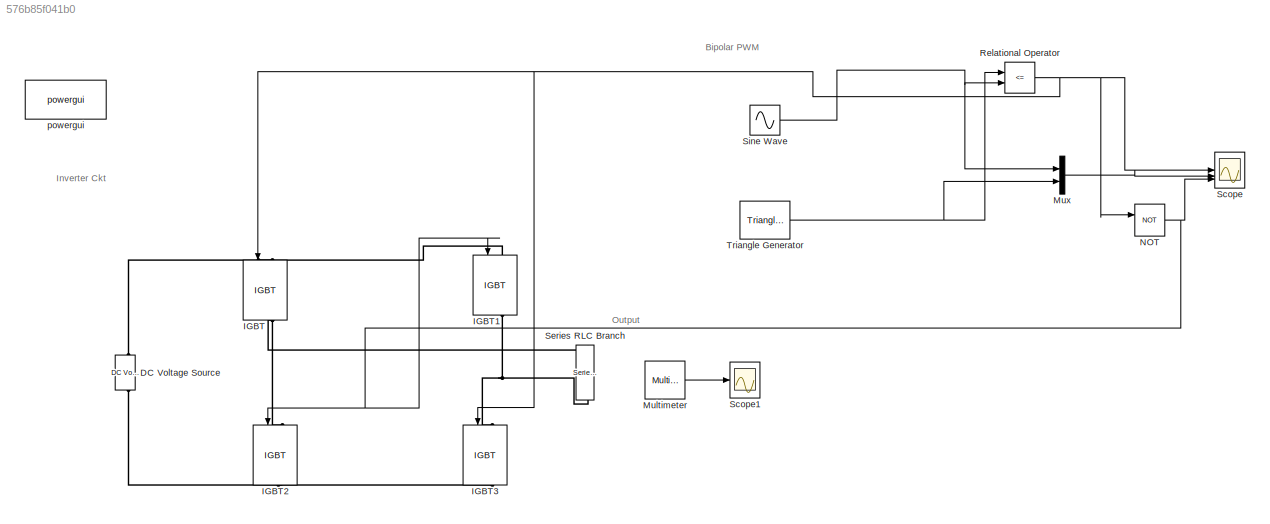
MODEL slx_576b85f041b0
KIND model
CONFIG AbsTol = auto
CONFIG EnableMultiTasking = off
CONFIG FixedStep = auto
CONFIG MaxStep = auto
CONFIG MinStep = auto
CONFIG RelTol = 1e-3
CONFIG SampleTimeConstraint = Unconstrained
CONFIG SolverName = VariableStepAuto
CONFIG StartTime = 0.0
CONFIG StopTime = 10.0
BLOCK [Reference] DC Voltage Source  REF=spsDCVoltageSourceLib/DC Voltage Source
  LibrarySourceBlock = sps_lib/Sources/DC Voltage Source
  SourceBlock = spsDCVoltageSourceLib/DC Voltage Source
  SourceType = DC Voltage Source
BLOCK [Reference] IGBT  REF=spsIGBTLib/IGBT
  LibrarySourceBlock = sps_lib/Power Electronics/IGBT
  NameLocation = left
  SourceBlock = spsIGBTLib/IGBT
  SourceType = IGBT
BLOCK [Reference] IGBT1  REF=spsIGBTLib/IGBT
  LibrarySourceBlock = sps_lib/Power Electronics/IGBT
  NameLocation = left
  SourceBlock = spsIGBTLib/IGBT
  SourceType = IGBT
BLOCK [Reference] IGBT2  REF=spsIGBTLib/IGBT
  LibrarySourceBlock = sps_lib/Power Electronics/IGBT
  NameLocation = left
  SourceBlock = spsIGBTLib/IGBT
  SourceType = IGBT
BLOCK [Reference] IGBT3  REF=spsIGBTLib/IGBT
  LibrarySourceBlock = sps_lib/Power Electronics/IGBT
  NameLocation = left
  SourceBlock = spsIGBTLib/IGBT
  SourceType = IGBT
BLOCK [Reference] Multimeter  REF=spsMultimeterLib/Multimeter
  LibrarySourceBlock = sps_lib/Sensors and Measurements/Multimeter
  SourceBlock = spsMultimeterLib/Multimeter
  SourceType = Multimeter
BLOCK [Mux] Mux
  DisplayOption = bar
  Inputs = 2
BLOCK [Logic] NOT
  AllPortsSameDT = off
  IconShape = distinctive
  Operator = NOT
  OutDataTypeStr = boolean
BLOCK [RelationalOperator] Relational Operator
  InputSameDT = off
  Operator = <=
  OutDataTypeStr = boolean
  RndMeth = Simplest
BLOCK [Scope] Scope
  Floating = off
  NumInputPorts = 3
  ScopeSpecificationString = Simulink.scopes.TimeScopeBlockCfg('CurrentConfiguration', extmgr.ConfigurationSet(extmgr.Configuration('Core','General UI',true),extmgr.Configuration('Core','Source UI',true),extmgr.Configuration('Sources','WiredSimulink',true),extmgr.Configuration('Visuals','Time Domain',true,'SerializedDisplays',{struct('MinYLimReal','-0.125','MaxYLimReal','1.125','YLabelReal','','MinYLimMag','0.00000','MaxYLimM...<+2764ch>
BLOCK [Scope] Scope1
  Floating = off
  NumInputPorts = 1
  ScopeSpecificationString = Simulink.scopes.TimeScopeBlockCfg('CurrentConfiguration', extmgr.ConfigurationSet(extmgr.Configuration('Core','General UI',true),extmgr.Configuration('Core','Source UI',true),extmgr.Configuration('Sources','WiredSimulink',true,'DataLoggingVariableName','ScopeData1'),extmgr.Configuration('Visuals','Time Domain',true,'SerializedDisplays',{struct('MinYLimReal','-122.25549','MaxYLimReal','122.25549','...<+1532ch>
BLOCK [Reference] Series RLC Branch  REF=spsSeriesRLCBranchLib/Series RLC Branch
  LibrarySourceBlock = sps_lib/Passives/Series RLC Branch
  NameLocation = left
  SourceBlock = spsSeriesRLCBranchLib/Series RLC Branch
  SourceType = Series RLC Branch
BLOCK [Sin] Sine Wave
  Amplitude = 0.9
  Frequency = 2*pi*50
  SampleTime = 0
BLOCK [Reference] Triangle Generator  REF=spsTriangleGeneratorLib/Triangle
Generator
  LibrarySourceBlock = sps_lib/Sources/Signal Generator Sources/Triangle\nGenerator
  SourceBlock = spsTriangleGeneratorLib/Triangle\nGenerator
  SourceType = Triangle Generator
BLOCK [Reference] powergui  REF=sps_lib/powergui
  LibrarySourceBlock = sps_lib/powergui
  Priority = 1
  SourceBlock = sps_lib/powergui
  SourceType = PSB option menu block
ANNOTATION (root): Bipolar PWM
ANNOTATION (root): Inverter Ckt
ANNOTATION (root): Output
LINE Multimeter:1 -> Scope1:1
LINE Mux:1 -> Scope:2
NET NOT:1 -> IGBT1:1, IGBT2:1, Scope:3
NET Relational Operator:1 -> IGBT3:1, IGBT:1, NOT:1, Scope:1
NET Sine Wave:1 -> Mux:1, Relational Operator:2
NET Triangle Generator:1 -> Mux:2, Relational Operator:1
PNET net1: DC Voltage Source:LConn1 -- IGBT2:RConn1 -- IGBT3:RConn1
PNET net2: DC Voltage Source:RConn1 -- IGBT1:LConn1 -- IGBT:LConn1
PNET net3: IGBT1:RConn1 -- IGBT3:LConn1 -- Series RLC Branch:RConn1
PNET net4: IGBT2:LConn1 -- IGBT:RConn1 -- Series RLC Branch:LConn1
note: NET lines group one-source signal fan-out (src -> all destinations, sorted); 1:1 wires keep LINE; PNET lines group multi-terminal physical nets as a canonical sorted terminal list (undirected conserving connections); 2-terminal nets keep the pairwise PLINE form
